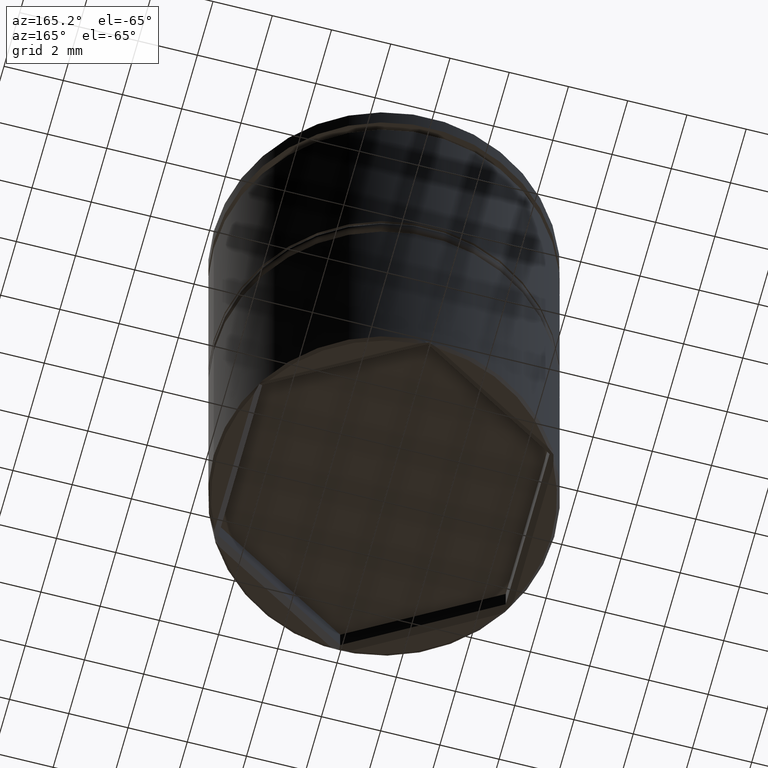
[diagram: clean part render]
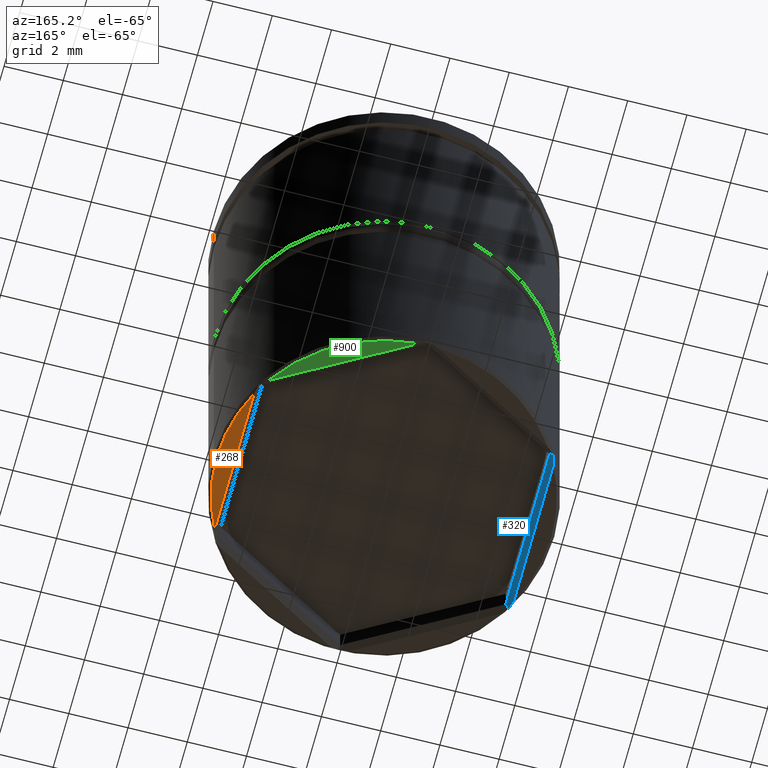
[diagram: same view with three faces highlighted in distinct colors, each labeled with its STEP entity id]
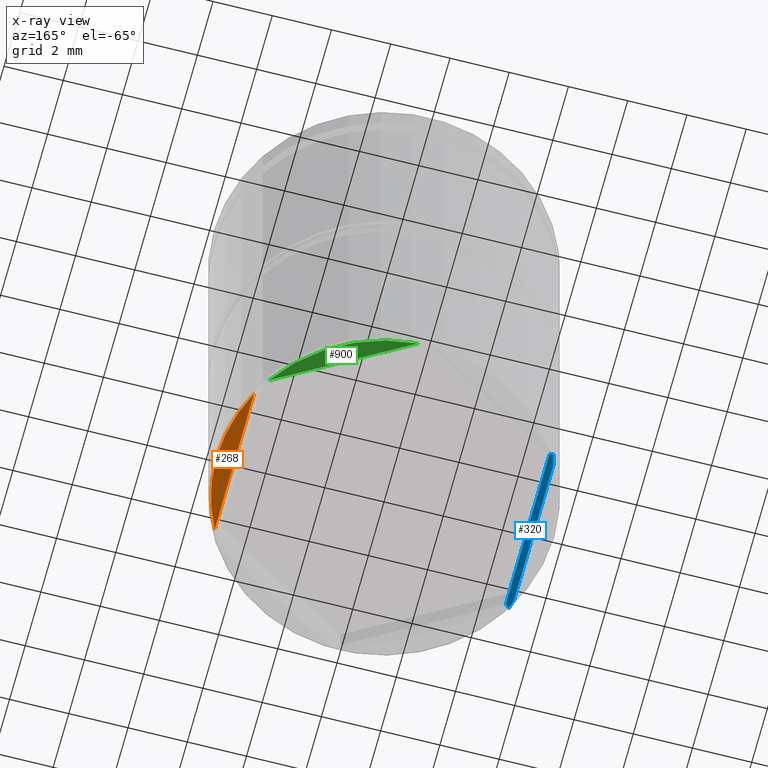
[diagram: x-ray of the same camera — body ghosted, the three highlighted faces saturated]
A machine part, auxiliary view with three faces highlighted in distinct colors.
The next image is the same camera in x-ray (body ghosted, the three faces saturated) — at least one of them is partly hidden behind the body in this view.
Their STEP definitions:

[orange] entity #268 — the highlighted planar face has unit normal (0, 0, -1).
#3 = AXIS2_PLACEMENT_3D ( 'NONE', #912, #270, #890 ) ;
#53 = CARTESIAN_POINT ( 'NONE',  ( 5.049999999999998934, 2.533771891863980663, -17.50000000000000000 ) ) ;
#79 = CARTESIAN_POINT ( 'NONE',  ( 5.049999999999998934, -2.533771891863980663, -17.50000000000000000 ) ) ;
#84 = DIRECTION ( 'NONE',  ( 0.000000000000000000, 0.000000000000000000, -1.000000000000000000 ) ) ;
#121 = DIRECTION ( 'NONE',  ( 0.000000000000000000, 0.000000000000000000, -1.000000000000000000 ) ) ;
#176 = VERTEX_POINT ( 'NONE', #79 ) ;
#268 = ADVANCED_FACE ( 'NONE', ( #1235 ), #700, .T. ) ;
#270 = DIRECTION ( 'NONE',  ( 0.000000000000000000, 0.000000000000000000, -1.000000000000000000 ) ) ;
#402 = EDGE_CURVE ( 'NONE', #1176, #1058, #1237, .T. ) ;
#459 = EDGE_CURVE ( 'NONE', #1058, #176, #933, .T. ) ;
#507 = AXIS2_PLACEMENT_3D ( 'NONE', #611, #84, #1353 ) ;
#611 = CARTESIAN_POINT ( 'NONE',  ( 0.000000000000000000, 0.000000000000000000, -17.50000000000000000 ) ) ;
#624 = AXIS2_PLACEMENT_3D ( 'NONE', #1269, #121, #861 ) ;
#700 = PLANE ( 'NONE',  #3 ) ;
#703 = ORIENTED_EDGE ( 'NONE', *, *, #771, .T. ) ;
#771 = EDGE_CURVE ( 'NONE', #176, #1176, #1028, .T. ) ;
#789 = ORIENTED_EDGE ( 'NONE', *, *, #402, .T. ) ;
#861 = DIRECTION ( 'NONE',  ( -1.000000000000000000, 0.000000000000000000, 0.000000000000000000 ) ) ;
#890 = DIRECTION ( 'NONE',  ( -1.000000000000000000, 0.000000000000000000, -0.000000000000000000 ) ) ;
#901 = EDGE_LOOP ( 'NONE', ( #789, #997, #703 ) ) ;
#912 = CARTESIAN_POINT ( 'NONE',  ( 0.000000000000000000, 5.750000000000000000, -17.50000000000000000 ) ) ;
#924 = DIRECTION ( 'NONE',  ( -0.000000000000000000, 1.000000000000000000, 0.000000000000000000 ) ) ;
#933 = CIRCLE ( 'NONE', #624, 5.649999999999996803 ) ;
#997 = ORIENTED_EDGE ( 'NONE', *, *, #459, .T. ) ;
#1028 = LINE ( 'NONE', #1365, #1140 ) ;
#1058 = VERTEX_POINT ( 'NONE', #1373 ) ;
#1140 = VECTOR ( 'NONE', #924, 1000.000000000000000 ) ;
#1176 = VERTEX_POINT ( 'NONE', #53 ) ;
#1235 = FACE_OUTER_BOUND ( 'NONE', #901, .T. ) ;
#1237 = CIRCLE ( 'NONE', #507, 5.649999999999996803 ) ;
#1269 = CARTESIAN_POINT ( 'NONE',  ( 0.000000000000000000, 0.000000000000000000, -17.50000000000000000 ) ) ;
#1353 = DIRECTION ( 'NONE',  ( -1.000000000000000000, 0.000000000000000000, 0.000000000000000000 ) ) ;
#1365 = CARTESIAN_POINT ( 'NONE',  ( 5.049999999999998934, 2.800148805569681265, -17.50000000000000000 ) ) ;
#1373 = CARTESIAN_POINT ( 'NONE',  ( 5.649999999999996803, 0.000000000000000000, -17.50000000000000000 ) ) ;

[blue] entity #320 — the highlighted planar face has unit normal (0.7071, 0, -0.7071).
#22 = CARTESIAN_POINT ( 'NONE',  ( -4.849999999999996980, 2.800148805569683486, -17.30000000000000071 ) ) ;
#30 = DIRECTION ( 'NONE',  ( 0.000000000000000000, -1.000000000000000000, 0.000000000000000000 ) ) ;
#33 = EDGE_CURVE ( 'NONE', #234, #321, #89, .T. ) ;
#74 = VERTEX_POINT ( 'NONE', #929 ) ;
#83 = CARTESIAN_POINT ( 'NONE',  ( -4.995443361553345341, 2.756751568350237935, -17.44544336155334818 ) ) ;
#89 = LINE ( 'NONE', #1133, #255 ) ;
#125 = EDGE_LOOP ( 'NONE', ( #1074, #227, #1177, #718, #1308, #134 ) ) ;
#134 = ORIENTED_EDGE ( 'NONE', *, *, #1172, .F. ) ;
#135 = DIRECTION ( 'NONE',  ( 0.000000000000000000, 1.000000000000000000, 0.000000000000000000 ) ) ;
#143 = VERTEX_POINT ( 'NONE', #1227 ) ;
#206 = VERTEX_POINT ( 'NONE', #1174 ) ;
#213 = AXIS2_PLACEMENT_3D ( 'NONE', #566, #689, #30 ) ;
#227 = ORIENTED_EDGE ( 'NONE', *, *, #356, .F. ) ;
#234 = VERTEX_POINT ( 'NONE', #528 ) ;
#255 = VECTOR ( 'NONE', #602, 1000.000000000000114 ) ;
#272 = CARTESIAN_POINT ( 'NONE',  ( -4.965887281973971668, 2.867056359013012923, -17.41588728197397629 ) ) ;
#320 = ADVANCED_FACE ( 'NONE', ( #1316 ), #1329, .T. ) ;
#321 = VERTEX_POINT ( 'NONE', #777 ) ;
#335 = EDGE_CURVE ( 'NONE', #743, #143, #804, .T. ) ;
#346 = LINE ( 'NONE', #767, #735 ) ;
#347 = CARTESIAN_POINT ( 'NONE',  ( -4.965887281973972556, -2.867056359013011591, -17.41588728197397273 ) ) ;
#356 = EDGE_CURVE ( 'NONE', #321, #143, #346, .T. ) ;
#393 = VECTOR ( 'NONE', #793, 1000.000000000000114 ) ;
#398 = CARTESIAN_POINT ( 'NONE',  ( -5.049999999999998934, -2.800148805569682153, -17.50000000000000000 ) ) ;
#528 = CARTESIAN_POINT ( 'NONE',  ( -4.965887281973972556, -2.867056359013011591, -17.41588728197397273 ) ) ;
#566 = CARTESIAN_POINT ( 'NONE',  ( -4.849999999999996980, -2.800148805569682153, -17.30000000000000071 ) ) ;
#602 = DIRECTION ( 'NONE',  ( 0.6546536707079763096, 0.3779644730092298621, 0.6546536707079763096 ) ) ;
#689 = DIRECTION ( 'NONE',  ( 0.7071067811865475727, 0.000000000000000000, -0.7071067811865475727 ) ) ;
#699 = CARTESIAN_POINT ( 'NONE',  ( -5.023513024741943944, -2.645625147546241784, -17.47351302474194767 ) ) ;
#713 = CARTESIAN_POINT ( 'NONE',  ( -5.049999999999998934, 2.533771891863980663, -17.50000000000000000 ) ) ;
#718 = ORIENTED_EDGE ( 'NONE', *, *, #830, .F. ) ;
#730 = CARTESIAN_POINT ( 'NONE',  ( -5.049999999999998934, -2.533771891863980663, -17.50000000000000000 ) ) ;
#735 = VECTOR ( 'NONE', #135, 1000.000000000000000 ) ;
#743 = VERTEX_POINT ( 'NONE', #272 ) ;
#767 = CARTESIAN_POINT ( 'NONE',  ( -4.849999999999996980, 2.800148805569683486, -17.30000000000000071 ) ) ;
#773 = EDGE_CURVE ( 'NONE', #206, #74, #1231, .T. ) ;
#777 = CARTESIAN_POINT ( 'NONE',  ( -4.849999999999996980, -2.800148805569682153, -17.30000000000000071 ) ) ;
#793 = DIRECTION ( 'NONE',  ( 0.6546536707079774198, -0.3779644730092259763, 0.6546536707079774198 ) ) ;
#804 = LINE ( 'NONE', #22, #393 ) ;
#820 = CARTESIAN_POINT ( 'NONE',  ( -5.023513024741943944, 2.645625147546241340, -17.47351302474194767 ) ) ;
#828 = CARTESIAN_POINT ( 'NONE',  ( -4.995443361553347117, -2.756751568350238379, -17.44544336155334818 ) ) ;
#830 = EDGE_CURVE ( 'NONE', #74, #234, #1270, .T. ) ;
#929 = CARTESIAN_POINT ( 'NONE',  ( -5.049999999999998934, -2.533771891863980663, -17.50000000000000000 ) ) ;
#1014 = DIRECTION ( 'NONE',  ( 0.000000000000000000, -1.000000000000000000, 0.000000000000000000 ) ) ;
#1040 = CARTESIAN_POINT ( 'NONE',  ( -4.965887281973971668, 2.867056359013012923, -17.41588728197397629 ) ) ;
#1074 = ORIENTED_EDGE ( 'NONE', *, *, #335, .T. ) ;
#1133 = CARTESIAN_POINT ( 'NONE',  ( -4.849999999999996980, -2.800148805569682153, -17.30000000000000071 ) ) ;
#1172 = EDGE_CURVE ( 'NONE', #743, #206, #1285, .T. ) ;
#1174 = CARTESIAN_POINT ( 'NONE',  ( -5.049999999999998934, 2.533771891863980663, -17.50000000000000000 ) ) ;
#1177 = ORIENTED_EDGE ( 'NONE', *, *, #33, .F. ) ;
#1227 = CARTESIAN_POINT ( 'NONE',  ( -4.849999999999996980, 2.800148805569683486, -17.30000000000000071 ) ) ;
#1231 = LINE ( 'NONE', #398, #1335 ) ;
#1270 = B_SPLINE_CURVE_WITH_KNOTS ( 'NONE', 3,
 ( #730, #699, #828, #347 ),
 .UNSPECIFIED., .F., .F.,
 ( 4, 4 ),
 ( 0.000000000000000000, 0.0003538762985991933700 ),
 .UNSPECIFIED. ) ;
#1285 = B_SPLINE_CURVE_WITH_KNOTS ( 'NONE', 3,
 ( #1040, #83, #820, #713 ),
 .UNSPECIFIED., .F., .F.,
 ( 4, 4 ),
 ( 0.000000000000000000, 0.0003538762985991938037 ),
 .UNSPECIFIED. ) ;
#1308 = ORIENTED_EDGE ( 'NONE', *, *, #773, .F. ) ;
#1316 = FACE_OUTER_BOUND ( 'NONE', #125, .T. ) ;
#1329 = PLANE ( 'NONE',  #213 ) ;
#1335 = VECTOR ( 'NONE', #1014, 1000.000000000000000 ) ;

[green] entity #900 — the highlighted planar face has unit normal (0, 0, -1).
#47 = DIRECTION ( 'NONE',  ( 0.000000000000000000, 0.000000000000000000, -1.000000000000000000 ) ) ;
#50 = EDGE_CURVE ( 'NONE', #637, #1097, #921, .T. ) ;
#147 = CIRCLE ( 'NONE', #918, 5.649999999999996803 ) ;
#170 = ORIENTED_EDGE ( 'NONE', *, *, #50, .T. ) ;
#369 = EDGE_CURVE ( 'NONE', #1097, #637, #147, .T. ) ;
#400 = DIRECTION ( 'NONE',  ( -0.8660254037844387076, 0.4999999999999998335, 0.000000000000000000 ) ) ;
#407 = CARTESIAN_POINT ( 'NONE',  ( 0.3306891742508298315, 5.640314235043404345, -17.50000000000000000 ) ) ;
#488 = DIRECTION ( 'NONE',  ( 0.000000000000000000, 0.000000000000000000, -1.000000000000000000 ) ) ;
#637 = VERTEX_POINT ( 'NONE', #1146 ) ;
#670 = EDGE_LOOP ( 'NONE', ( #1275, #170 ) ) ;
#887 = FACE_OUTER_BOUND ( 'NONE', #670, .T. ) ;
#900 = ADVANCED_FACE ( 'NONE', ( #887 ), #996, .T. ) ;
#918 = AXIS2_PLACEMENT_3D ( 'NONE', #1025, #488, #1129 ) ;
#921 = LINE ( 'NONE', #1137, #1047 ) ;
#996 = PLANE ( 'NONE',  #1337 ) ;
#1024 = DIRECTION ( 'NONE',  ( -1.000000000000000000, 0.000000000000000000, -0.000000000000000000 ) ) ;
#1025 = CARTESIAN_POINT ( 'NONE',  ( 0.000000000000000000, 0.000000000000000000, -17.50000000000000000 ) ) ;
#1047 = VECTOR ( 'NONE', #400, 1000.000000000000000 ) ;
#1097 = VERTEX_POINT ( 'NONE', #407 ) ;
#1129 = DIRECTION ( 'NONE',  ( -1.000000000000000000, 0.000000000000000000, 0.000000000000000000 ) ) ;
#1137 = CARTESIAN_POINT ( 'NONE',  ( 0.1000000000000011713, 5.773502691896253758, -17.50000000000000000 ) ) ;
#1146 = CARTESIAN_POINT ( 'NONE',  ( 4.719310825749166050, 3.106542343179421906, -17.50000000000000000 ) ) ;
#1275 = ORIENTED_EDGE ( 'NONE', *, *, #369, .T. ) ;
#1331 = CARTESIAN_POINT ( 'NONE',  ( 0.000000000000000000, 5.750000000000000000, -17.50000000000000000 ) ) ;
#1337 = AXIS2_PLACEMENT_3D ( 'NONE', #1331, #47, #1024 ) ;